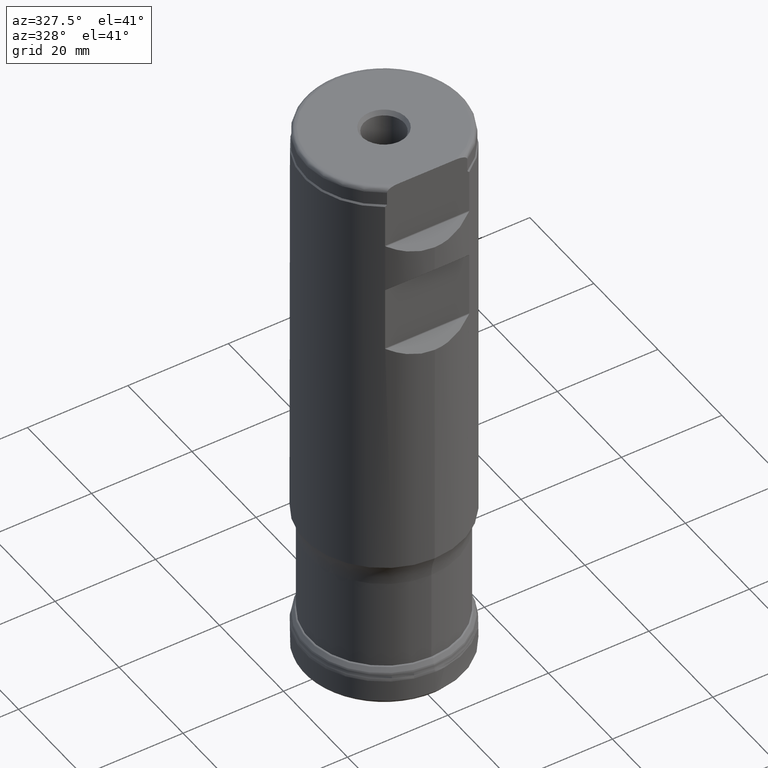
[diagram: clean part render]
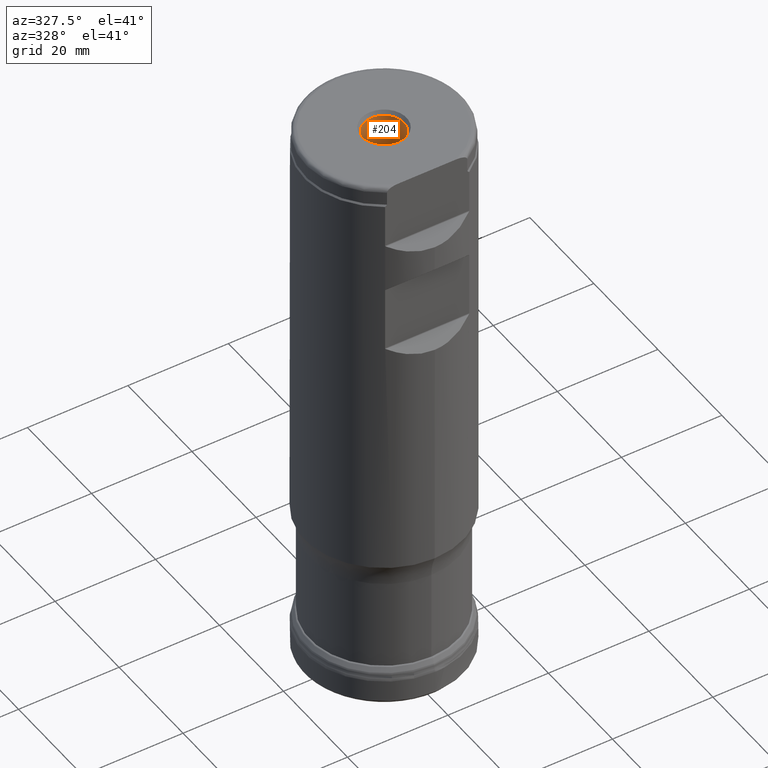
[diagram: same view with one face highlighted and labeled with its STEP entity id]
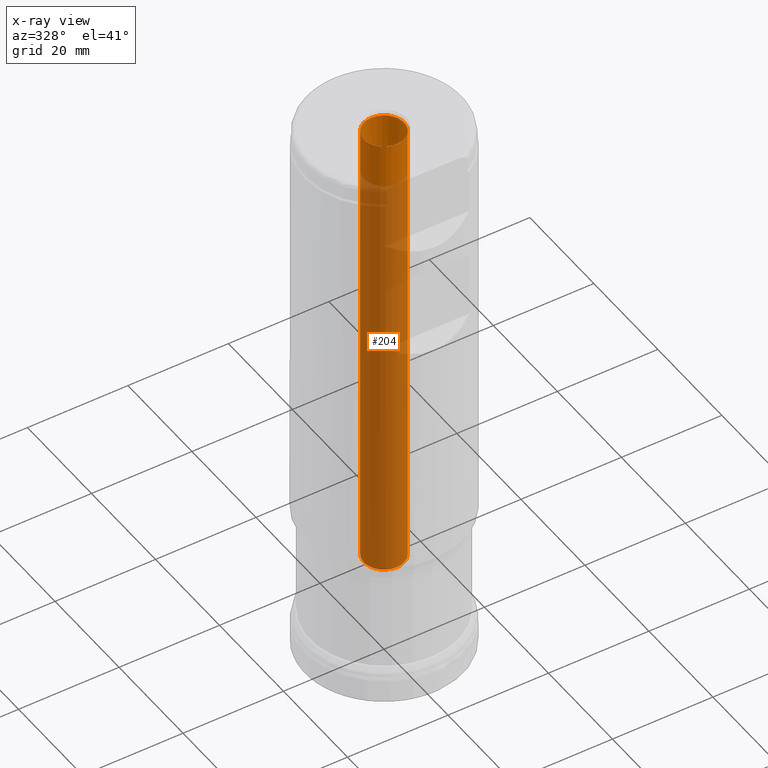
[diagram: x-ray of the same camera — body ghosted, the highlighted face saturated]
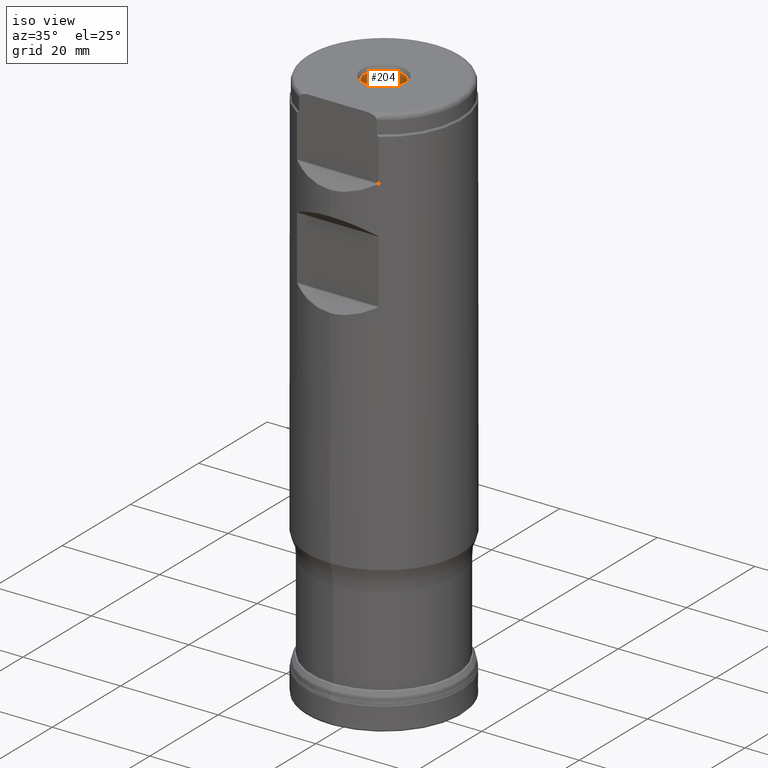
[diagram: same view with one face highlighted and labeled with its STEP entity id]
A machine part, auxiliary view. The second image highlights one B-rep face of the part: STEP entity #204.
The next image is the same camera in x-ray: the body ghosted, the highlighted face saturated — about 86% of this face is hidden behind the body in this view.
A second angle (iso view) of the same face is appended — the face is thin or edge-on in the first view.
In plain terms, the highlighted cylindrical surface (bore or boss wall) has radius 4 mm, axis along (0, -0, -1).
Its self-contained STEP definition (entity closure, byte-faithful):
#204=ADVANCED_FACE('',(#317,#318),#241,.F.);
#241=CYLINDRICAL_SURFACE('',#850,4.);
#263=CIRCLE('',#847,4.);
#264=CIRCLE('',#849,4.);
#317=FACE_BOUND('',#400,.T.);
#318=FACE_BOUND('',#401,.T.);
#400=EDGE_LOOP('',(#553));
#401=EDGE_LOOP('',(#554));
#553=ORIENTED_EDGE('',*,*,#734,.T.);
#554=ORIENTED_EDGE('',*,*,#733,.F.);
#669=VERTEX_POINT('',#1455);
#671=VERTEX_POINT('',#1459);
#733=EDGE_CURVE('',#669,#669,#263,.T.);
#734=EDGE_CURVE('',#671,#671,#264,.T.);
#847=AXIS2_PLACEMENT_3D('',#1454,#967,#968);
#849=AXIS2_PLACEMENT_3D('',#1458,#971,#972);
#850=AXIS2_PLACEMENT_3D('',#1460,#973,#974);
#967=DIRECTION('',(0.,1.17145536458252E-15,1.));
#968=DIRECTION('',(0.,1.,-8.67361737988404E-16));
#971=DIRECTION('',(0.,1.17145536458252E-15,1.));
#972=DIRECTION('',(0.,-1.,0.));
#973=DIRECTION('',(0.,-1.17145536458252E-15,-1.));
#974=DIRECTION('',(0.,1.,0.));
#1454=CARTESIAN_POINT('',(0.,2.26090885364427E-14,19.3));
#1455=CARTESIAN_POINT('',(0.,4.00000000000002,19.3));
#1458=CARTESIAN_POINT('',(0.,1.32882838066654E-13,113.433974596216));
#1459=CARTESIAN_POINT('',(0.,-3.99999999999987,113.433974596216));
#1460=CARTESIAN_POINT('',(0.,1.33897348171783E-13,114.3));